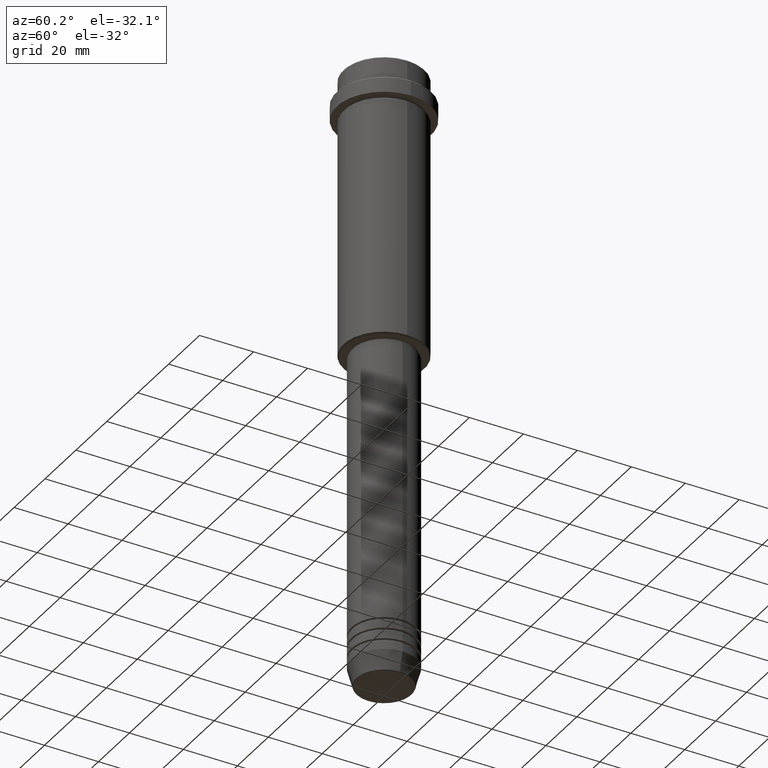
[diagram: clean part render]
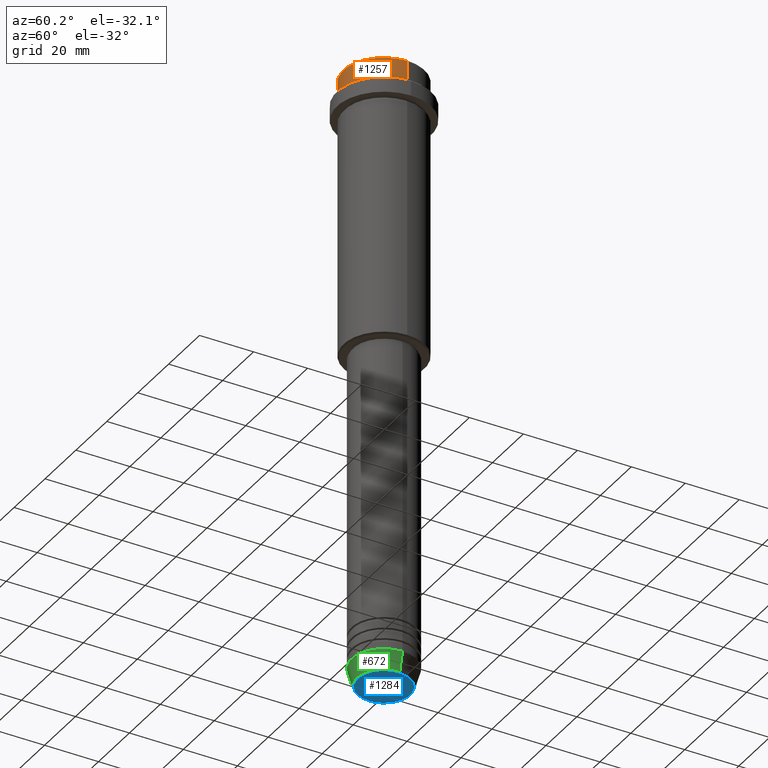
[diagram: same view with three faces highlighted in distinct colors, each labeled with its STEP entity id]
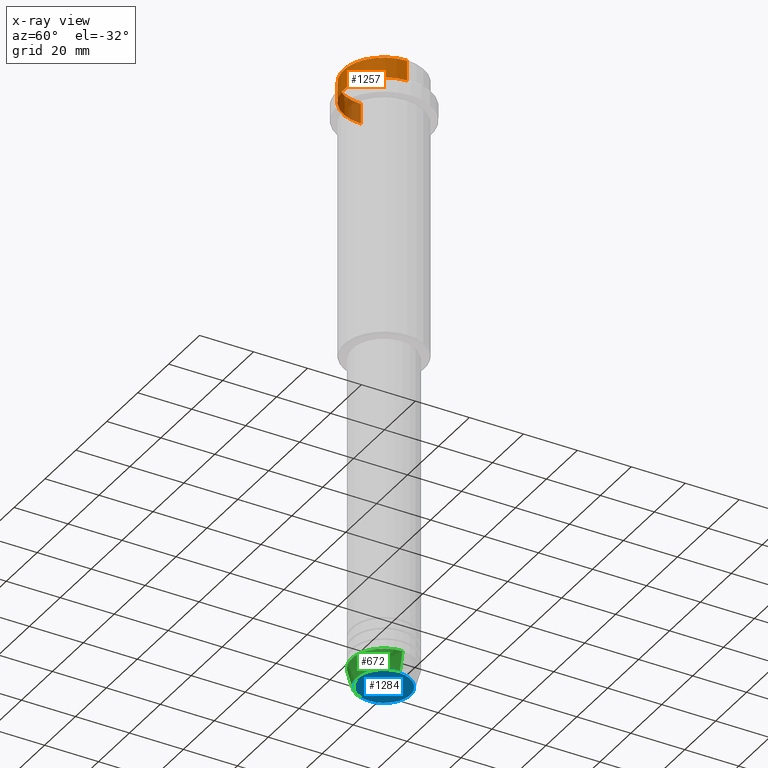
[diagram: x-ray of the same camera — body ghosted, the three highlighted faces saturated]
A machine part, auxiliary view with three faces highlighted in distinct colors.
The next image is the same camera in x-ray (body ghosted, the three faces saturated) — at least one of them is partly hidden behind the body in this view.
Their STEP definitions:

[orange] entity #1257 — the highlighted cylindrical surface (partial cylindrical patch) has radius 15 mm, axis along (-0, -0, 1).
#27 = DIRECTION ( 'NONE',  ( 0.000000000000000000, 0.000000000000000000, -1.000000000000000000 ) ) ;
#45 = CARTESIAN_POINT ( 'NONE',  ( 15.00000000000000000, 0.000000000000000000, 0.000000000000000000 ) ) ;
#94 = VERTEX_POINT ( 'NONE', #644 ) ;
#118 = DIRECTION ( 'NONE',  ( -0.000000000000000000, -0.000000000000000000, 1.000000000000000000 ) ) ;
#175 = VERTEX_POINT ( 'NONE', #653 ) ;
#308 = EDGE_CURVE ( 'NONE', #175, #94, #905, .T. ) ;
#350 = DIRECTION ( 'NONE',  ( -0.000000000000000000, -0.000000000000000000, 1.000000000000000000 ) ) ;
#361 = CARTESIAN_POINT ( 'NONE',  ( 0.000000000000000000, 0.000000000000000000, -0.4999999999999831246 ) ) ;
#380 = VECTOR ( 'NONE', #492, 1000.000000000000000 ) ;
#388 = EDGE_LOOP ( 'NONE', ( #701, #530, #1034, #804 ) ) ;
#404 = AXIS2_PLACEMENT_3D ( 'NONE', #1096, #118, #560 ) ;
#410 = AXIS2_PLACEMENT_3D ( 'NONE', #361, #27, #1143 ) ;
#434 = DIRECTION ( 'NONE',  ( 1.000000000000000000, 0.000000000000000000, 0.000000000000000000 ) ) ;
#462 = EDGE_CURVE ( 'NONE', #175, #988, #1016, .T. ) ;
#492 = DIRECTION ( 'NONE',  ( -0.000000000000000000, -0.000000000000000000, 1.000000000000000000 ) ) ;
#500 = CARTESIAN_POINT ( 'NONE',  ( -15.00000000000000000, 1.836970198721029589E-15, 0.000000000000000000 ) ) ;
#530 = ORIENTED_EDGE ( 'NONE', *, *, #308, .T. ) ;
#560 = DIRECTION ( 'NONE',  ( 1.000000000000000000, 0.000000000000000000, 0.000000000000000000 ) ) ;
#573 = FACE_OUTER_BOUND ( 'NONE', #388, .T. ) ;
#594 = CIRCLE ( 'NONE', #410, 15.00000000000000000 ) ;
#644 = CARTESIAN_POINT ( 'NONE',  ( 15.00000000000000000, 0.000000000000000000, -7.999999999999998224 ) ) ;
#653 = CARTESIAN_POINT ( 'NONE',  ( -15.00000000000000000, 1.836970198721029589E-15, -7.999999999999998224 ) ) ;
#701 = ORIENTED_EDGE ( 'NONE', *, *, #462, .F. ) ;
#717 = LINE ( 'NONE', #45, #1130 ) ;
#804 = ORIENTED_EDGE ( 'NONE', *, *, #1347, .T. ) ;
#905 = CIRCLE ( 'NONE', #404, 15.00000000000000000 ) ;
#919 = VERTEX_POINT ( 'NONE', #1214 ) ;
#946 = EDGE_CURVE ( 'NONE', #94, #919, #717, .T. ) ;
#986 = CARTESIAN_POINT ( 'NONE',  ( 0.000000000000000000, 0.000000000000000000, 0.000000000000000000 ) ) ;
#988 = VERTEX_POINT ( 'NONE', #1138 ) ;
#997 = AXIS2_PLACEMENT_3D ( 'NONE', #986, #350, #434 ) ;
#1016 = LINE ( 'NONE', #500, #380 ) ;
#1034 = ORIENTED_EDGE ( 'NONE', *, *, #946, .T. ) ;
#1044 = DIRECTION ( 'NONE',  ( -0.000000000000000000, -0.000000000000000000, 1.000000000000000000 ) ) ;
#1096 = CARTESIAN_POINT ( 'NONE',  ( 0.000000000000000000, 0.000000000000000000, -7.999999999999998224 ) ) ;
#1130 = VECTOR ( 'NONE', #1044, 1000.000000000000000 ) ;
#1138 = CARTESIAN_POINT ( 'NONE',  ( -15.00000000000000000, 1.836970198721029589E-15, -0.4999999999999831246 ) ) ;
#1143 = DIRECTION ( 'NONE',  ( 1.000000000000000000, 0.000000000000000000, 0.000000000000000000 ) ) ;
#1214 = CARTESIAN_POINT ( 'NONE',  ( 15.00000000000000000, 0.000000000000000000, -0.4999999999999831246 ) ) ;
#1257 = ADVANCED_FACE ( 'NONE', ( #573 ), #1411, .T. ) ;
#1347 = EDGE_CURVE ( 'NONE', #919, #988, #594, .T. ) ;
#1411 = CYLINDRICAL_SURFACE ( 'NONE', #997, 15.00000000000000000 ) ;

[blue] entity #1284 — the highlighted planar face has unit normal (0, -0, 1).
#1 = DIRECTION ( 'NONE',  ( 0.000000000000000000, -0.000000000000000000, 1.000000000000000000 ) ) ;
#14 = CIRCLE ( 'NONE', #1018, 9.740692158992658278 ) ;
#51 = VERTEX_POINT ( 'NONE', #852 ) ;
#126 = ORIENTED_EDGE ( 'NONE', *, *, #1070, .T. ) ;
#188 = DIRECTION ( 'NONE',  ( 0.000000000000000000, 0.000000000000000000, -1.000000000000000000 ) ) ;
#214 = FACE_OUTER_BOUND ( 'NONE', #349, .T. ) ;
#265 = CARTESIAN_POINT ( 'NONE',  ( 9.740692158992658278, 0.000000000000000000, -229.9999999999999716 ) ) ;
#300 = CARTESIAN_POINT ( 'NONE',  ( 0.000000000000000000, 0.000000000000000000, -229.9999999999999716 ) ) ;
#315 = AXIS2_PLACEMENT_3D ( 'NONE', #1314, #1, #778 ) ;
#349 = EDGE_LOOP ( 'NONE', ( #126, #1167 ) ) ;
#409 = AXIS2_PLACEMENT_3D ( 'NONE', #758, #188, #649 ) ;
#445 = PLANE ( 'NONE',  #315 ) ;
#649 = DIRECTION ( 'NONE',  ( 1.000000000000000000, 0.000000000000000000, 0.000000000000000000 ) ) ;
#758 = CARTESIAN_POINT ( 'NONE',  ( 0.000000000000000000, 0.000000000000000000, -229.9999999999999716 ) ) ;
#778 = DIRECTION ( 'NONE',  ( 1.000000000000000000, 0.000000000000000000, 0.000000000000000000 ) ) ;
#852 = CARTESIAN_POINT ( 'NONE',  ( -9.740692158992658278, 1.222463696683474999E-15, -229.9999999999999716 ) ) ;
#934 = VERTEX_POINT ( 'NONE', #265 ) ;
#1018 = AXIS2_PLACEMENT_3D ( 'NONE', #300, #1155, #1077 ) ;
#1070 = EDGE_CURVE ( 'NONE', #934, #51, #1244, .T. ) ;
#1077 = DIRECTION ( 'NONE',  ( 1.000000000000000000, 0.000000000000000000, 0.000000000000000000 ) ) ;
#1125 = EDGE_CURVE ( 'NONE', #51, #934, #14, .T. ) ;
#1155 = DIRECTION ( 'NONE',  ( 0.000000000000000000, 0.000000000000000000, -1.000000000000000000 ) ) ;
#1167 = ORIENTED_EDGE ( 'NONE', *, *, #1125, .T. ) ;
#1244 = CIRCLE ( 'NONE', #409, 9.740692158992658278 ) ;
#1284 = ADVANCED_FACE ( 'NONE', ( #214 ), #445, .F. ) ;
#1314 = CARTESIAN_POINT ( 'NONE',  ( 0.000000000000000000, 0.000000000000000000, -229.9999999999999716 ) ) ;

[green] entity #672 — the highlighted conical surface has half-angle 15 deg.
#69 = CARTESIAN_POINT ( 'NONE',  ( 0.000000000000000000, 0.000000000000000000, -229.6294095225512422 ) ) ;
#72 = DIRECTION ( 'NONE',  ( 1.000000000000000000, 0.000000000000000000, 0.000000000000000000 ) ) ;
#112 = CARTESIAN_POINT ( 'NONE',  ( -12.00000000000000000, 1.469576158976823947E-15, -222.9999999999999716 ) ) ;
#123 = EDGE_CURVE ( 'NONE', #248, #1319, #885, .T. ) ;
#136 = EDGE_CURVE ( 'NONE', #397, #248, #930, .T. ) ;
#145 = ORIENTED_EDGE ( 'NONE', *, *, #123, .F. ) ;
#215 = CARTESIAN_POINT ( 'NONE',  ( 0.000000000000000000, 0.000000000000000000, -222.9999999999999716 ) ) ;
#230 = ORIENTED_EDGE ( 'NONE', *, *, #266, .T. ) ;
#248 = VERTEX_POINT ( 'NONE', #112 ) ;
#266 = EDGE_CURVE ( 'NONE', #1058, #1319, #908, .T. ) ;
#348 = CARTESIAN_POINT ( 'NONE',  ( 12.00000000000000000, 0.000000000000000000, -222.9999999999999716 ) ) ;
#384 = AXIS2_PLACEMENT_3D ( 'NONE', #69, #1295, #959 ) ;
#397 = VERTEX_POINT ( 'NONE', #1116 ) ;
#497 = CONICAL_SURFACE ( 'NONE', #1409, 12.00000000000000000, 0.2617993877991500740 ) ;
#532 = DIRECTION ( 'NONE',  ( -0.2588190451025213501, 3.169619151431772337E-17, 0.9659258262890680902 ) ) ;
#536 = FACE_OUTER_BOUND ( 'NONE', #1004, .T. ) ;
#551 = DIRECTION ( 'NONE',  ( -0.000000000000000000, -0.000000000000000000, 1.000000000000000000 ) ) ;
#566 = DIRECTION ( 'NONE',  ( 0.2588190451025213501, 0.000000000000000000, 0.9659258262890680902 ) ) ;
#672 = ADVANCED_FACE ( 'NONE', ( #536 ), #497, .T. ) ;
#747 = ORIENTED_EDGE ( 'NONE', *, *, #136, .F. ) ;
#792 = AXIS2_PLACEMENT_3D ( 'NONE', #215, #551, #1190 ) ;
#885 = CIRCLE ( 'NONE', #792, 12.00000000000000000 ) ;
#908 = LINE ( 'NONE', #348, #1312 ) ;
#930 = LINE ( 'NONE', #1185, #1198 ) ;
#959 = DIRECTION ( 'NONE',  ( 1.000000000000000000, 0.000000000000000000, 0.000000000000000000 ) ) ;
#967 = DIRECTION ( 'NONE',  ( -0.000000000000000000, -0.000000000000000000, 1.000000000000000000 ) ) ;
#995 = CIRCLE ( 'NONE', #384, 10.22365507213719127 ) ;
#1004 = EDGE_LOOP ( 'NONE', ( #747, #1368, #230, #145 ) ) ;
#1049 = CARTESIAN_POINT ( 'NONE',  ( 10.22365507213719127, 0.000000000000000000, -229.6294095225512422 ) ) ;
#1058 = VERTEX_POINT ( 'NONE', #1049 ) ;
#1116 = CARTESIAN_POINT ( 'NONE',  ( -10.22365507213719127, 1.360806402472382744E-15, -229.6294095225512422 ) ) ;
#1163 = EDGE_CURVE ( 'NONE', #397, #1058, #995, .T. ) ;
#1169 = CARTESIAN_POINT ( 'NONE',  ( 0.000000000000000000, 0.000000000000000000, -222.9999999999999716 ) ) ;
#1185 = CARTESIAN_POINT ( 'NONE',  ( -12.00000000000000000, 1.469576158976823947E-15, -222.9999999999999716 ) ) ;
#1190 = DIRECTION ( 'NONE',  ( 1.000000000000000000, 0.000000000000000000, 0.000000000000000000 ) ) ;
#1198 = VECTOR ( 'NONE', #532, 1000.000000000000000 ) ;
#1201 = CARTESIAN_POINT ( 'NONE',  ( 12.00000000000000000, 0.000000000000000000, -222.9999999999999716 ) ) ;
#1295 = DIRECTION ( 'NONE',  ( -0.000000000000000000, -0.000000000000000000, 1.000000000000000000 ) ) ;
#1312 = VECTOR ( 'NONE', #566, 1000.000000000000000 ) ;
#1319 = VERTEX_POINT ( 'NONE', #1201 ) ;
#1368 = ORIENTED_EDGE ( 'NONE', *, *, #1163, .T. ) ;
#1409 = AXIS2_PLACEMENT_3D ( 'NONE', #1169, #967, #72 ) ;